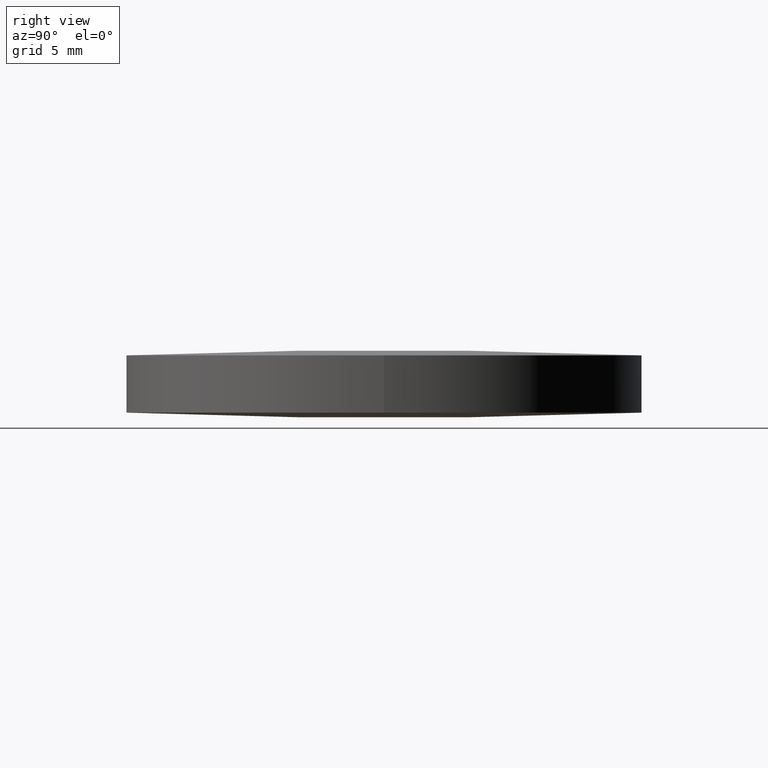
[diagram: clean part render]
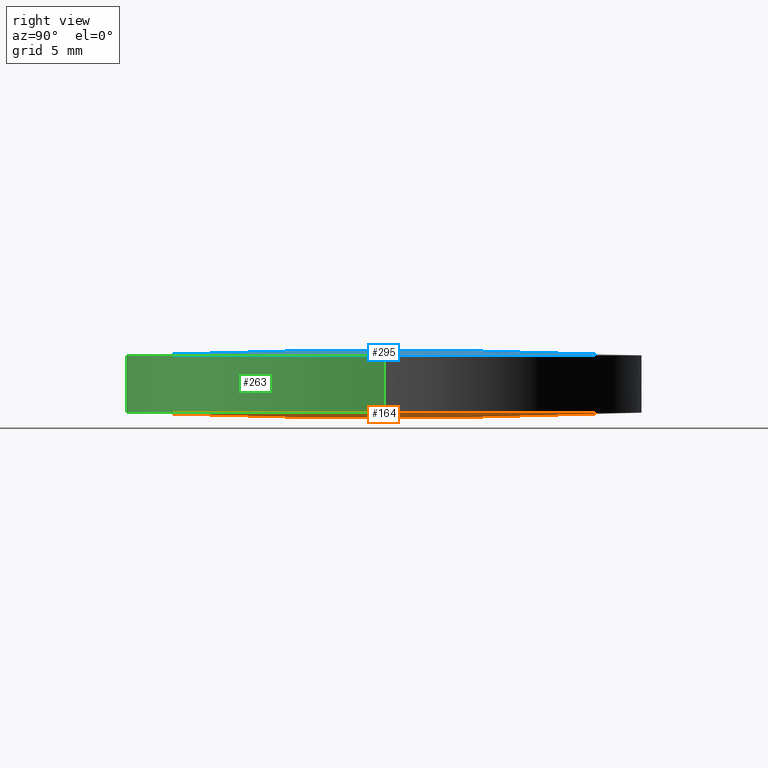
[diagram: same view with three faces highlighted in distinct colors, each labeled with its STEP entity id]
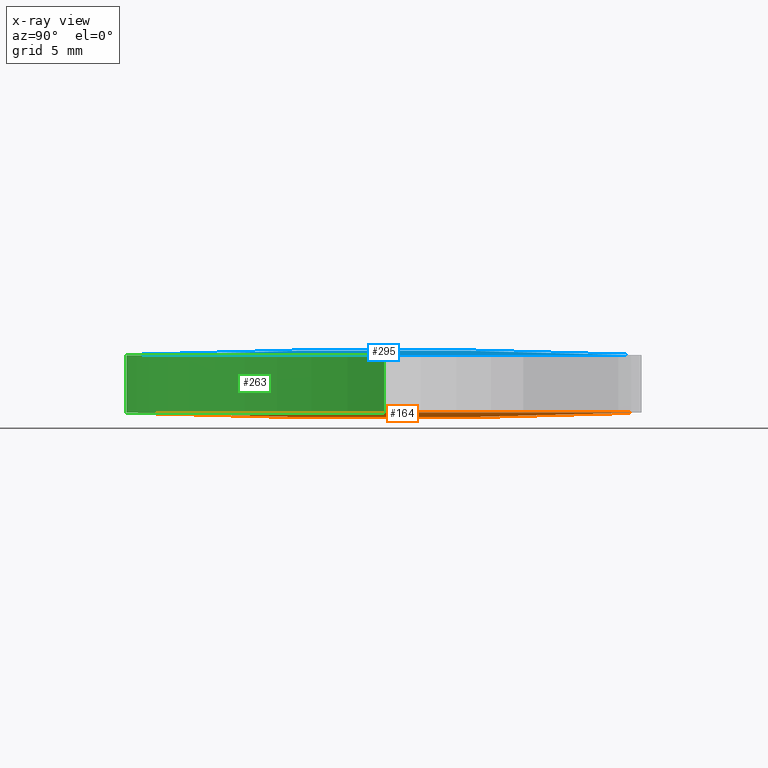
[diagram: x-ray of the same camera — body ghosted, the three highlighted faces saturated]
A machine part, right view with three faces highlighted in distinct colors.
The next image is the same camera in x-ray (body ghosted, the three faces saturated) — at least one of them is partly hidden behind the body in this view.
Their STEP definitions:

[orange] entity #164 — the highlighted face is a freeform B-spline surface patch.
#4 = CARTESIAN_POINT ( 'NONE',  ( 0.0000000000000000000, -2.842170943040400100E-014, 475.2641939237290700 ) ) ;
#12 = CARTESIAN_POINT ( 'NONE',  ( 12.76867264870312900, 19.27847528127602700, 0.5199222830434634400 ) ) ;
#25 = CARTESIAN_POINT ( 'NONE',  ( 19.16949876273368500, -6.429686377467067600, 0.2561866818561408500 ) ) ;
#31 = CARTESIAN_POINT ( 'NONE',  ( 6.384985517109417000, 19.27847528127603000, 0.3911641391337580800 ) ) ;
#32 = CIRCLE ( 'NONE', #277, 475.2641939237290700 ) ;
#36 = FACE_OUTER_BOUND ( 'NONE', #230, .T. ) ;
#44 = DIRECTION ( 'NONE',  ( 1.000000000000000000, -2.445677697528830200E-016, -2.113563270613760000E-016 ) ) ;
#45 = CARTESIAN_POINT ( 'NONE',  ( 19.14846515180230600, 19.27847528127603000, 0.7773862049776968400 ) ) ;
#49 = ORIENTED_EDGE ( 'NONE', *, *, #286, .T. ) ;
#50 = DIRECTION ( 'NONE',  ( -2.913971193241879900E-018, -1.358596498406960000E-034, -1.000000000000000000 ) ) ;
#52 = EDGE_CURVE ( 'NONE', #68, #225, #32, .T. ) ;
#59 = CARTESIAN_POINT ( 'NONE',  ( -4.662936703425659800E-015, -8.881784197001250400E-016, 0.3819437543087000300 ) ) ;
#64 = CARTESIAN_POINT ( 'NONE',  ( 19.14846515180229500, -19.27847528127616500, 0.7773862049776968400 ) ) ;
#67 = DIRECTION ( 'NONE',  ( 1.000000000000000000, 0.0000000000000000000, -2.845674993400274200E-018 ) ) ;
#68 = VERTEX_POINT ( 'NONE', #248 ) ;
#82 = CARTESIAN_POINT ( 'NONE',  ( -9.571035216865770700E-014, 19.05000000000014300, 0.3819437543087111400 ) ) ;
#88 = CARTESIAN_POINT ( 'NONE',  ( -9.890517382201484500E-014, 6.429686377466935300, -0.1304596292002267200 ) ) ;
#90 = CARTESIAN_POINT ( 'NONE',  ( -4.662936703425659800E-015, -8.881784197001250400E-016, 0.3819437543087000300 ) ) ;
#97 = AXIS2_PLACEMENT_3D ( 'NONE', #59, #228, #153 ) ;
#104 = DIRECTION ( 'NONE',  ( -2.445677697528829200E-016, -1.000000000000000000, 2.336012346015964100E-016 ) ) ;
#108 = CARTESIAN_POINT ( 'NONE',  ( 6.384985517109407200, -19.27847528127615800, 0.3911641391337580800 ) ) ;
#110 = CARTESIAN_POINT ( 'NONE',  ( 6.391999097576814400, 6.429686377466933500, -0.1304596292002280800 ) ) ;
#119 = EDGE_CURVE ( 'NONE', #225, #255, #267, .T. ) ;
#123 = CARTESIAN_POINT ( 'NONE',  ( -1.050823130995572400E-013, -19.27847528127616200, 0.3911641391337594700 ) ) ;
#128 = CARTESIAN_POINT ( 'NONE',  ( 12.78269838342775700, 6.429686377466932600, -0.001560051045961950600 ) ) ;
#129 = CARTESIAN_POINT ( 'NONE',  ( 19.16949876273368900, 6.429686377466930800, 0.2561866818561427900 ) ) ;
#152 = CARTESIAN_POINT ( 'NONE',  ( -9.565252569200169300E-014, 19.27847528127603400, 0.3911641391337594700 ) ) ;
#153 = DIRECTION ( 'NONE',  ( 1.000000000000000000, -1.776356839400250500E-015, -2.845674993400274200E-018 ) ) ;
#164 = ADVANCED_FACE ( 'NONE', ( #36 ), #293, .T. ) ;
#173 = CIRCLE ( 'NONE', #194, 19.05000000000000100 ) ;
#176 = CARTESIAN_POINT ( 'NONE',  ( 12.76867264870311800, -19.27847528127616200, 0.5199222830434634400 ) ) ;
#194 = AXIS2_PLACEMENT_3D ( 'NONE', #90, #50, #67 ) ;
#204 = CARTESIAN_POINT ( 'NONE',  ( -1.020501619371100500E-013, -6.429686377467064100, -0.1304596292002286900 ) ) ;
#225 = VERTEX_POINT ( 'NONE', #82 ) ;
#228 = DIRECTION ( 'NONE',  ( -2.913971193241879900E-018, -1.358596498406960000E-034, -1.000000000000000000 ) ) ;
#229 = CARTESIAN_POINT ( 'NONE',  ( 12.78269838342775300, -6.429686377467066700, -0.001560051045963793800 ) ) ;
#230 = EDGE_LOOP ( 'NONE', ( #49, #243, #292 ) ) ;
#243 = ORIENTED_EDGE ( 'NONE', *, *, #52, .T. ) ;
#248 = CARTESIAN_POINT ( 'NONE',  ( -1.050283841962426400E-013, -19.05000000000017100, 0.3819437543087111400 ) ) ;
#255 = VERTEX_POINT ( 'NONE', #280 ) ;
#267 = CIRCLE ( 'NONE', #97, 19.05000000000000100 ) ;
#273 = CARTESIAN_POINT ( 'NONE',  ( 6.391999097576810800, -6.429686377467065800, -0.1304596292002300200 ) ) ;
#277 = AXIS2_PLACEMENT_3D ( 'NONE', #4, #44, #104 ) ;
#280 = CARTESIAN_POINT ( 'NONE',  ( 19.04999999999999700, -8.881784197001250400E-016, 0.3819437543086999800 ) ) ;
#286 = EDGE_CURVE ( 'NONE', #255, #68, #173, .T. ) ;
#292 = ORIENTED_EDGE ( 'NONE', *, *, #119, .T. ) ;
#293 =( BOUNDED_SURFACE ( )  B_SPLINE_SURFACE ( 3, 3, ( 
 ( #123, #108, #176, #64 ),
 ( #204, #273, #229, #25 ),
 ( #88, #110, #128, #129 ),
 ( #152, #31, #12, #45 ) ),
 .UNSPECIFIED., .F., .F., .F. ) 
 B_SPLINE_SURFACE_WITH_KNOTS ( ( 4, 4 ),
 ( 4, 4 ),
 ( 0.0000000000000000000, 1.000000000000000000 ),
 ( 0.0000000000000000000, 1.000000000000000000 ),
 .UNSPECIFIED. ) 
 GEOMETRIC_REPRESENTATION_ITEM ( )  RATIONAL_B_SPLINE_SURFACE ( (
 ( 1.000000000000000000, 0.9998644334679308600, 0.9998644334679308600, 1.000000000000000000),
 ( 0.9994513028835543300, 0.9993158107364503700, 0.9993158107364503700, 0.9994513028835543300),
 ( 0.9994513028835543300, 0.9993158107364503700, 0.9993158107364503700, 0.9994513028835543300),
 ( 1.000000000000000000, 0.9998644334679308600, 0.9998644334679308600, 1.000000000000000000) ) ) 
 REPRESENTATION_ITEM ( '' )  SURFACE ( )  );

[blue] entity #295 — the highlighted face is a freeform B-spline surface patch.
#1 = EDGE_CURVE ( 'NONE', #210, #95, #18, .T. ) ;
#3 = DIRECTION ( 'NONE',  ( 1.000000000000000000, 0.0000000000000000000, 0.0000000000000000000 ) ) ;
#9 = CARTESIAN_POINT ( 'NONE',  ( 19.04999999999999700, -8.881784197001250400E-016, 4.618056245691300400 ) ) ;
#18 = CIRCLE ( 'NONE', #91, 19.05000000000000100 ) ;
#19 = CIRCLE ( 'NONE', #103, 475.2641939237290700 ) ;
#20 = AXIS2_PLACEMENT_3D ( 'NONE', #242, #197, #80 ) ;
#26 = CARTESIAN_POINT ( 'NONE',  ( 0.0000000000000000000, -2.842170943040400100E-014, -470.2641939237290100 ) ) ;
#35 = CARTESIAN_POINT ( 'NONE',  ( 6.391999097577104800, -6.429686377467057000, 5.130459629200199600 ) ) ;
#39 = EDGE_CURVE ( 'NONE', #56, #210, #100, .T. ) ;
#53 = CARTESIAN_POINT ( 'NONE',  ( 19.16949876273392700, -6.429686377467053400, 4.743813318143868000 ) ) ;
#56 = VERTEX_POINT ( 'NONE', #169 ) ;
#70 = CARTESIAN_POINT ( 'NONE',  ( 19.14846515180254700, 19.27847528127604400, 4.222613795022311900 ) ) ;
#80 = DIRECTION ( 'NONE',  ( 1.000000000000000000, 8.881784197001252300E-016, 0.0000000000000000000 ) ) ;
#83 = CARTESIAN_POINT ( 'NONE',  ( -4.650592793654439200E-015, -8.881784197001250400E-016, 4.618056245691300400 ) ) ;
#91 = AXIS2_PLACEMENT_3D ( 'NONE', #83, #223, #3 ) ;
#92 = CARTESIAN_POINT ( 'NONE',  ( 6.391999097577104800, 6.429686377466943300, 5.130459629200198700 ) ) ;
#95 = VERTEX_POINT ( 'NONE', #151 ) ;
#96 = CARTESIAN_POINT ( 'NONE',  ( 6.384985517109697600, 19.27847528127603700, 4.608835860866211200 ) ) ;
#100 = CIRCLE ( 'NONE', #20, 19.05000000000000100 ) ;
#103 = AXIS2_PLACEMENT_3D ( 'NONE', #26, #275, #175 ) ;
#113 = CARTESIAN_POINT ( 'NONE',  ( 19.14846515180255400, -19.27847528127615100, 4.222613795022311900 ) ) ;
#114 = CARTESIAN_POINT ( 'NONE',  ( 2.151057110211241000E-013, -6.429686377467057800, 5.130459629200202300 ) ) ;
#126 = EDGE_CURVE ( 'NONE', #95, #56, #19, .T. ) ;
#132 = CARTESIAN_POINT ( 'NONE',  ( 2.081668171172168500E-013, 19.27847528127604100, 4.608835860866214800 ) ) ;
#139 = CARTESIAN_POINT ( 'NONE',  ( 12.78269838342802700, 6.429686377466944200, 5.001560051045973200 ) ) ;
#140 = CARTESIAN_POINT ( 'NONE',  ( 19.16949876273392700, 6.429686377466945900, 4.743813318143867100 ) ) ;
#151 = CARTESIAN_POINT ( 'NONE',  ( 1.050283841962426500E-013, -19.05000000000017100, 4.618056245691290600 ) ) ;
#160 = ORIENTED_EDGE ( 'NONE', *, *, #39, .F. ) ;
#169 = CARTESIAN_POINT ( 'NONE',  ( 9.571035216865772000E-014, 19.05000000000014300, 4.618056245691290600 ) ) ;
#175 = DIRECTION ( 'NONE',  ( 2.445677697528829700E-016, -1.000000000000000000, 0.0000000000000000000 ) ) ;
#197 = DIRECTION ( 'NONE',  ( -2.913971193241879900E-018, -1.358596498406960000E-034, -1.000000000000000000 ) ) ;
#210 = VERTEX_POINT ( 'NONE', #9 ) ;
#213 = CARTESIAN_POINT ( 'NONE',  ( 2.151057110211241000E-013, 6.429686377466941500, 5.130459629200201400 ) ) ;
#223 = DIRECTION ( 'NONE',  ( -2.913971193241879900E-018, -1.358596498406960000E-034, -1.000000000000000000 ) ) ;
#238 = ORIENTED_EDGE ( 'NONE', *, *, #126, .F. ) ;
#241 = FACE_OUTER_BOUND ( 'NONE', #264, .T. ) ;
#242 = CARTESIAN_POINT ( 'NONE',  ( -4.650592793654439200E-015, -8.881784197001250400E-016, 4.618056245691300400 ) ) ;
#259 = CARTESIAN_POINT ( 'NONE',  ( 12.78269838342802700, -6.429686377467056100, 5.001560051045974100 ) ) ;
#260 = CARTESIAN_POINT ( 'NONE',  ( 12.76867264870339500, -19.27847528127614800, 4.480077716956547100 ) ) ;
#264 = EDGE_LOOP ( 'NONE', ( #238, #281, #160 ) ) ;
#275 = DIRECTION ( 'NONE',  ( -1.000000000000000000, -2.445677697528830200E-016, 2.113563270613760000E-016 ) ) ;
#278 =( BOUNDED_SURFACE ( )  B_SPLINE_SURFACE ( 3, 3, ( 
 ( #113, #260, #287, #290 ),
 ( #53, #259, #35, #114 ),
 ( #140, #139, #92, #213 ),
 ( #70, #282, #96, #132 ) ),
 .UNSPECIFIED., .F., .F., .F. ) 
 B_SPLINE_SURFACE_WITH_KNOTS ( ( 4, 4 ),
 ( 4, 4 ),
 ( 0.0000000000000000000, 1.000000000000000000 ),
 ( 0.0000000000000000000, 1.000000000000000000 ),
 .UNSPECIFIED. ) 
 GEOMETRIC_REPRESENTATION_ITEM ( )  RATIONAL_B_SPLINE_SURFACE ( (
 ( 1.000000000000000000, 0.9998644334679308600, 0.9998644334679308600, 1.000000000000000000),
 ( 0.9994513028835543300, 0.9993158107364503700, 0.9993158107364503700, 0.9994513028835543300),
 ( 0.9994513028835543300, 0.9993158107364503700, 0.9993158107364503700, 0.9994513028835543300),
 ( 1.000000000000000000, 0.9998644334679308600, 0.9998644334679308600, 1.000000000000000000) ) ) 
 REPRESENTATION_ITEM ( '' )  SURFACE ( )  );
#281 = ORIENTED_EDGE ( 'NONE', *, *, #1, .F. ) ;
#282 = CARTESIAN_POINT ( 'NONE',  ( 12.76867264870339000, 19.27847528127604100, 4.480077716956547100 ) ) ;
#287 = CARTESIAN_POINT ( 'NONE',  ( 6.384985517109704700, -19.27847528127615100, 4.608835860866211200 ) ) ;
#290 = CARTESIAN_POINT ( 'NONE',  ( 2.151057110211240800E-013, -19.27847528127615500, 4.608835860866214800 ) ) ;
#295 = ADVANCED_FACE ( 'NONE', ( #241 ), #278, .T. ) ;

[green] entity #263 — the highlighted cylindrical surface (partial cylindrical patch) has radius 19.05 mm, axis along (0, 0, 1).
#1 = EDGE_CURVE ( 'NONE', #210, #95, #18, .T. ) ;
#3 = DIRECTION ( 'NONE',  ( 1.000000000000000000, 0.0000000000000000000, 0.0000000000000000000 ) ) ;
#9 = CARTESIAN_POINT ( 'NONE',  ( 19.04999999999999700, -8.881784197001250400E-016, 4.618056245691300400 ) ) ;
#10 = DIRECTION ( 'NONE',  ( -2.913971193241879900E-018, -1.358596498406960000E-034, -1.000000000000000000 ) ) ;
#18 = CIRCLE ( 'NONE', #91, 19.05000000000000100 ) ;
#23 = ORIENTED_EDGE ( 'NONE', *, *, #61, .F. ) ;
#27 = LINE ( 'NONE', #130, #135 ) ;
#33 = DIRECTION ( 'NONE',  ( 2.913971193241879900E-018, 1.358596498406960000E-034, 1.000000000000000000 ) ) ;
#41 = VERTEX_POINT ( 'NONE', #222 ) ;
#50 = DIRECTION ( 'NONE',  ( -2.913971193241879900E-018, -1.358596498406960000E-034, -1.000000000000000000 ) ) ;
#54 = CYLINDRICAL_SURFACE ( 'NONE', #163, 19.05000000000000100 ) ;
#61 = EDGE_CURVE ( 'NONE', #89, #41, #196, .T. ) ;
#62 = CARTESIAN_POINT ( 'NONE',  ( -19.05000000000000400, 1.444773732675583000E-015, 0.3819437543087000900 ) ) ;
#67 = DIRECTION ( 'NONE',  ( 1.000000000000000000, 0.0000000000000000000, -2.845674993400274200E-018 ) ) ;
#68 = VERTEX_POINT ( 'NONE', #248 ) ;
#74 = FACE_OUTER_BOUND ( 'NONE', #133, .T. ) ;
#76 = EDGE_CURVE ( 'NONE', #68, #89, #261, .T. ) ;
#79 = ORIENTED_EDGE ( 'NONE', *, *, #1, .T. ) ;
#83 = CARTESIAN_POINT ( 'NONE',  ( -4.650592793654439200E-015, -8.881784197001250400E-016, 4.618056245691300400 ) ) ;
#89 = VERTEX_POINT ( 'NONE', #62 ) ;
#90 = CARTESIAN_POINT ( 'NONE',  ( -4.662936703425659800E-015, -8.881784197001250400E-016, 0.3819437543087000300 ) ) ;
#91 = AXIS2_PLACEMENT_3D ( 'NONE', #83, #223, #3 ) ;
#95 = VERTEX_POINT ( 'NONE', #151 ) ;
#102 = CARTESIAN_POINT ( 'NONE',  ( -4.662936703425659800E-015, -8.881784197001250400E-016, 0.3819437543087000300 ) ) ;
#105 = ORIENTED_EDGE ( 'NONE', *, *, #286, .F. ) ;
#109 = ORIENTED_EDGE ( 'NONE', *, *, #76, .F. ) ;
#112 = VECTOR ( 'NONE', #269, 1000.000000000000000 ) ;
#120 = DIRECTION ( 'NONE',  ( -2.913971193241879900E-018, -1.358596498406960000E-034, -1.000000000000000000 ) ) ;
#130 = CARTESIAN_POINT ( 'NONE',  ( 19.04999999999999700, -8.881784197001250400E-016, 0.3819437543086999200 ) ) ;
#133 = EDGE_LOOP ( 'NONE', ( #23, #109, #105, #158, #79, #165 ) ) ;
#135 = VECTOR ( 'NONE', #156, 1000.000000000000000 ) ;
#149 = AXIS2_PLACEMENT_3D ( 'NONE', #276, #10, #249 ) ;
#151 = CARTESIAN_POINT ( 'NONE',  ( 1.050283841962426500E-013, -19.05000000000017100, 4.618056245691290600 ) ) ;
#156 = DIRECTION ( 'NONE',  ( 2.913971193241879900E-018, 1.358596498406960000E-034, 1.000000000000000000 ) ) ;
#158 = ORIENTED_EDGE ( 'NONE', *, *, #244, .T. ) ;
#163 = AXIS2_PLACEMENT_3D ( 'NONE', #247, #33, #181 ) ;
#165 = ORIENTED_EDGE ( 'NONE', *, *, #215, .T. ) ;
#173 = CIRCLE ( 'NONE', #194, 19.05000000000000100 ) ;
#181 = DIRECTION ( 'NONE',  ( 1.000000000000000000, 0.0000000000000000000, -2.845674993400274200E-018 ) ) ;
#190 = AXIS2_PLACEMENT_3D ( 'NONE', #102, #120, #224 ) ;
#192 = CIRCLE ( 'NONE', #149, 19.05000000000000100 ) ;
#194 = AXIS2_PLACEMENT_3D ( 'NONE', #90, #50, #67 ) ;
#196 = LINE ( 'NONE', #271, #112 ) ;
#210 = VERTEX_POINT ( 'NONE', #9 ) ;
#215 = EDGE_CURVE ( 'NONE', #95, #41, #192, .T. ) ;
#222 = CARTESIAN_POINT ( 'NONE',  ( -19.05000000000000400, 1.444773732675583000E-015, 4.618056245691300400 ) ) ;
#223 = DIRECTION ( 'NONE',  ( -2.913971193241879900E-018, -1.358596498406960000E-034, -1.000000000000000000 ) ) ;
#224 = DIRECTION ( 'NONE',  ( 1.000000000000000000, 0.0000000000000000000, -2.845674993400274200E-018 ) ) ;
#244 = EDGE_CURVE ( 'NONE', #255, #210, #27, .T. ) ;
#247 = CARTESIAN_POINT ( 'NONE',  ( -4.662936703425659800E-015, -8.881784197001250400E-016, 0.3819437543086999800 ) ) ;
#248 = CARTESIAN_POINT ( 'NONE',  ( -1.050283841962426400E-013, -19.05000000000017100, 0.3819437543087111400 ) ) ;
#249 = DIRECTION ( 'NONE',  ( 1.000000000000000000, 0.0000000000000000000, 0.0000000000000000000 ) ) ;
#255 = VERTEX_POINT ( 'NONE', #280 ) ;
#261 = CIRCLE ( 'NONE', #190, 19.05000000000000100 ) ;
#263 = ADVANCED_FACE ( 'NONE', ( #74 ), #54, .T. ) ;
#269 = DIRECTION ( 'NONE',  ( 2.913971193241879900E-018, 1.358596498406960000E-034, 1.000000000000000000 ) ) ;
#271 = CARTESIAN_POINT ( 'NONE',  ( -19.05000000000000400, 1.444773732675583000E-015, 0.3819437543087000300 ) ) ;
#276 = CARTESIAN_POINT ( 'NONE',  ( -4.650592793654439200E-015, -8.881784197001250400E-016, 4.618056245691300400 ) ) ;
#280 = CARTESIAN_POINT ( 'NONE',  ( 19.04999999999999700, -8.881784197001250400E-016, 0.3819437543086999800 ) ) ;
#286 = EDGE_CURVE ( 'NONE', #255, #68, #173, .T. ) ;